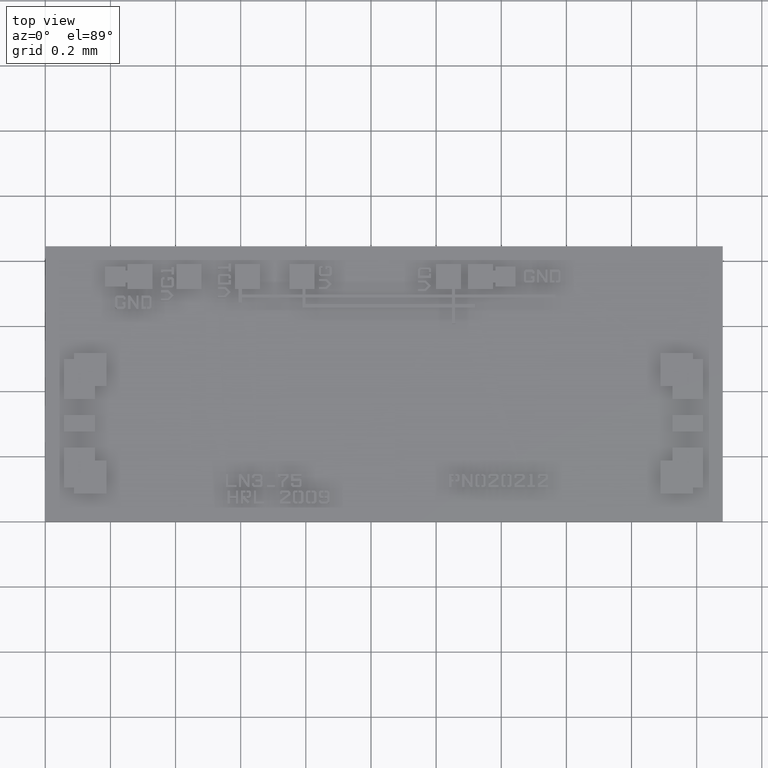
[diagram: clean part render]
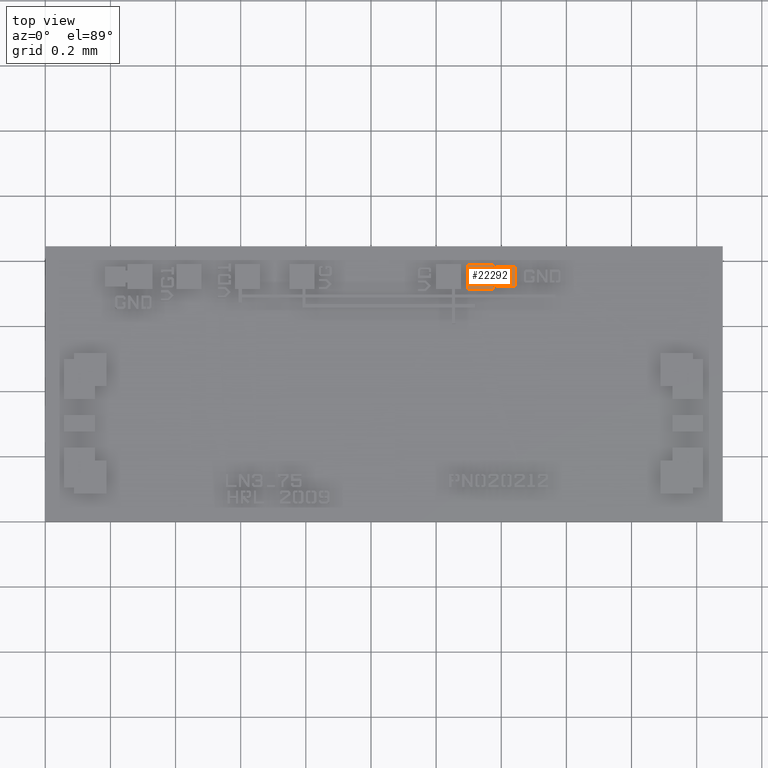
[diagram: same view with one face highlighted and labeled with its STEP entity id]
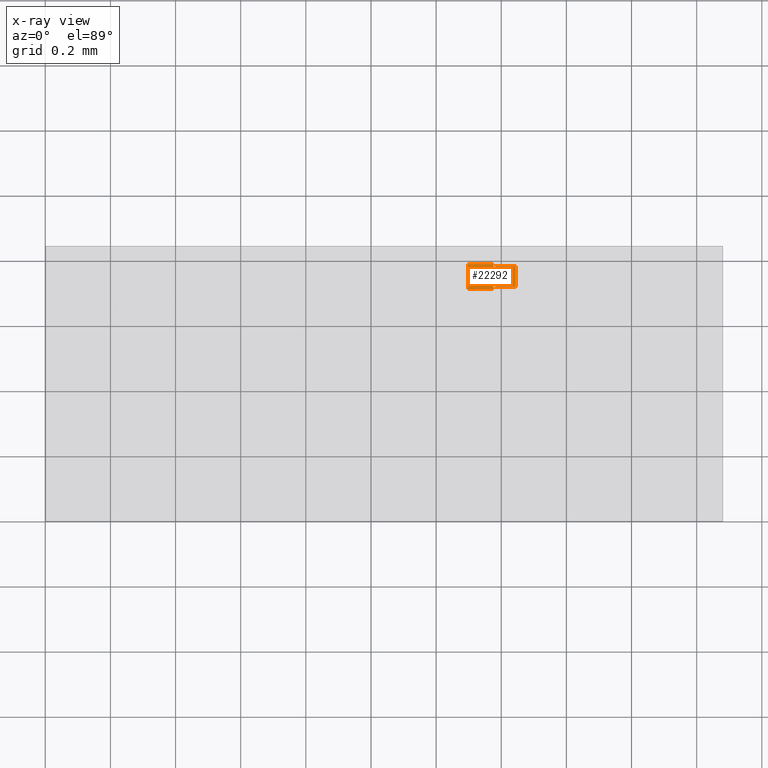
[diagram: x-ray of the same camera — body ghosted, the highlighted face saturated]
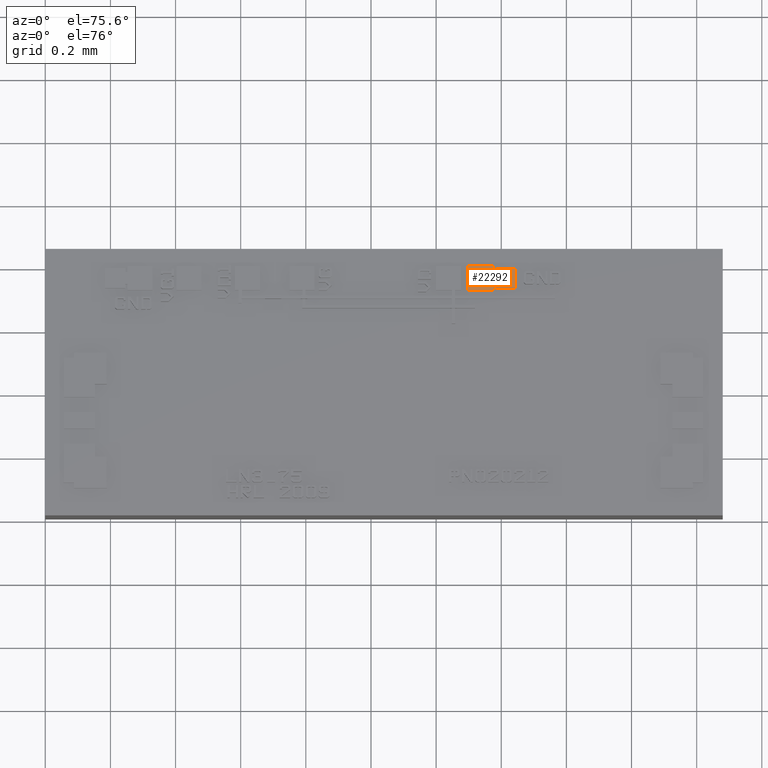
[diagram: same view with one face highlighted and labeled with its STEP entity id]
A machine part, top view. The second image highlights one B-rep face of the part: STEP entity #22292.
The next image is the same camera in x-ray: the body ghosted, the highlighted face saturated — about 0% of this face is hidden behind the body in this view.
A second angle (auxiliary view) of the same face is appended — the face is thin or edge-on in the first view.
In plain terms, the highlighted planar face has unit normal (0, 0, 1).
Its self-contained STEP definition (entity closure, byte-faithful):
#21906=CARTESIAN_POINT('',(0.054114173228346,0.028858267716535,0.002047244094488));
#21907=VERTEX_POINT('',#21906);
#21908=CARTESIAN_POINT('',(0.054114173228346,0.028070866141732,0.002047244094488));
#21909=VERTEX_POINT('',#21908);
#21910=CARTESIAN_POINT('',(0.054114173228346,0.028858267716535,0.002047244094488));
#21911=DIRECTION('',(0.0,-1.0,0.0));
#21912=VECTOR('',#21911,0.000787401574803);
#21913=LINE('',#21910,#21912);
#21914=EDGE_CURVE('',#21907,#21909,#21913,.T.);
#21946=CARTESIAN_POINT('',(0.051082677165354,0.028070866141732,0.002047244094488));
#21947=VERTEX_POINT('',#21946);
#21948=CARTESIAN_POINT('',(0.054114173228346,0.028070866141732,0.002047244094488));
#21949=DIRECTION('',(-1.0,0.0,0.0));
#21950=VECTOR('',#21949,0.003031496062992);
#21951=LINE('',#21948,#21950);
#21952=EDGE_CURVE('',#21909,#21947,#21951,.T.);
#21977=CARTESIAN_POINT('',(0.051082677165354,0.031102362204724,0.002047244094488));
#21978=VERTEX_POINT('',#21977);
#21979=CARTESIAN_POINT('',(0.051082677165354,0.028070866141732,0.002047244094488));
#21980=DIRECTION('',(0.0,1.0,0.0));
#21981=VECTOR('',#21980,0.003031496062992);
#21982=LINE('',#21979,#21981);
#21983=EDGE_CURVE('',#21947,#21978,#21982,.T.);
#22008=CARTESIAN_POINT('',(0.054114173228346,0.031102362204724,0.002047244094488));
#22009=VERTEX_POINT('',#22008);
#22010=CARTESIAN_POINT('',(0.051082677165354,0.031102362204724,0.002047244094488));
#22011=DIRECTION('',(1.0,0.0,0.0));
#22012=VECTOR('',#22011,0.003031496062992);
#22013=LINE('',#22010,#22012);
#22014=EDGE_CURVE('',#21978,#22009,#22013,.T.);
#22039=CARTESIAN_POINT('',(0.054114173228346,0.030314960629921,0.002047244094488));
#22040=VERTEX_POINT('',#22039);
#22041=CARTESIAN_POINT('',(0.054114173228346,0.031102362204724,0.002047244094488));
#22042=DIRECTION('',(0.0,-1.0,0.0));
#22043=VECTOR('',#22042,0.000787401574803);
#22044=LINE('',#22041,#22043);
#22045=EDGE_CURVE('',#22009,#22040,#22044,.T.);
#22070=CARTESIAN_POINT('',(0.054389763779528,0.030314960629921,0.002047244094488));
#22071=VERTEX_POINT('',#22070);
#22072=CARTESIAN_POINT('',(0.054114173228346,0.030314960629921,0.002047244094488));
#22073=DIRECTION('',(1.0,0.0,0.0));
#22074=VECTOR('',#22073,0.000275590551181);
#22075=LINE('',#22072,#22074);
#22076=EDGE_CURVE('',#22040,#22071,#22075,.T.);
#22101=CARTESIAN_POINT('',(0.054389763779528,0.030814960629921,0.002047244094488));
#22102=VERTEX_POINT('',#22101);
#22103=CARTESIAN_POINT('',(0.054389763779528,0.030314960629921,0.002047244094488));
#22104=DIRECTION('',(0.0,1.0,0.0));
#22105=VECTOR('',#22104,0.000500000000000);
#22106=LINE('',#22103,#22105);
#22107=EDGE_CURVE('',#22071,#22102,#22106,.T.);
#22132=CARTESIAN_POINT('',(0.056830708661417,0.030814960629921,0.002047244094488));
#22133=VERTEX_POINT('',#22132);
#22134=CARTESIAN_POINT('',(0.054389763779528,0.030814960629921,0.002047244094488));
#22135=DIRECTION('',(1.0,0.0,0.0));
#22136=VECTOR('',#22135,0.002440944881890);
#22137=LINE('',#22134,#22136);
#22138=EDGE_CURVE('',#22102,#22133,#22137,.T.);
#22163=CARTESIAN_POINT('',(0.056830708661417,0.028374015748032,0.002047244094488));
#22164=VERTEX_POINT('',#22163);
#22165=CARTESIAN_POINT('',(0.056830708661417,0.030814960629921,0.002047244094488));
#22166=DIRECTION('',(0.0,-1.0,0.0));
#22167=VECTOR('',#22166,0.002440944881890);
#22168=LINE('',#22165,#22167);
#22169=EDGE_CURVE('',#22133,#22164,#22168,.T.);
#22194=CARTESIAN_POINT('',(0.054389763779528,0.028374015748032,0.002047244094488));
#22195=VERTEX_POINT('',#22194);
#22196=CARTESIAN_POINT('',(0.056830708661417,0.028374015748032,0.002047244094488));
#22197=DIRECTION('',(-1.0,0.0,0.0));
#22198=VECTOR('',#22197,0.002440944881890);
#22199=LINE('',#22196,#22198);
#22200=EDGE_CURVE('',#22164,#22195,#22199,.T.);
#22225=CARTESIAN_POINT('',(0.054389763779528,0.028858267716535,0.002047244094488));
#22226=VERTEX_POINT('',#22225);
#22227=CARTESIAN_POINT('',(0.054389763779528,0.028374015748032,0.002047244094488));
#22228=DIRECTION('',(0.0,1.0,0.0));
#22229=VECTOR('',#22228,0.000484251968504);
#22230=LINE('',#22227,#22229);
#22231=EDGE_CURVE('',#22195,#22226,#22230,.T.);
#22256=CARTESIAN_POINT('',(0.054389763779528,0.028858267716535,0.002047244094488));
#22257=DIRECTION('',(-1.0,0.0,0.0));
#22258=VECTOR('',#22257,0.000275590551181);
#22259=LINE('',#22256,#22258);
#22260=EDGE_CURVE('',#22226,#21907,#22259,.T.);
#22273=CARTESIAN_POINT('',(0.053904305308611,0.029590551181102,0.002047244094488));
#22274=DIRECTION('',(0.0,0.0,1.0));
#22275=DIRECTION('',(1.0,0.0,0.0));
#22276=AXIS2_PLACEMENT_3D('',#22273,#22274,#22275);
#22277=PLANE('',#22276);
#22278=ORIENTED_EDGE('',*,*,#21914,.F.);
#22279=ORIENTED_EDGE('',*,*,#22260,.F.);
#22280=ORIENTED_EDGE('',*,*,#22231,.F.);
#22281=ORIENTED_EDGE('',*,*,#22200,.F.);
#22282=ORIENTED_EDGE('',*,*,#22169,.F.);
#22283=ORIENTED_EDGE('',*,*,#22138,.F.);
#22284=ORIENTED_EDGE('',*,*,#22107,.F.);
#22285=ORIENTED_EDGE('',*,*,#22076,.F.);
#22286=ORIENTED_EDGE('',*,*,#22045,.F.);
#22287=ORIENTED_EDGE('',*,*,#22014,.F.);
#22288=ORIENTED_EDGE('',*,*,#21983,.F.);
#22289=ORIENTED_EDGE('',*,*,#21952,.F.);
#22290=EDGE_LOOP('',(#22278,#22279,#22280,#22281,#22282,#22283,#22284,#22285,#22286,#22287,#22288,#22289));
#22291=FACE_OUTER_BOUND('',#22290,.T.);
#22292=ADVANCED_FACE('',(#22291),#22277,.T.);